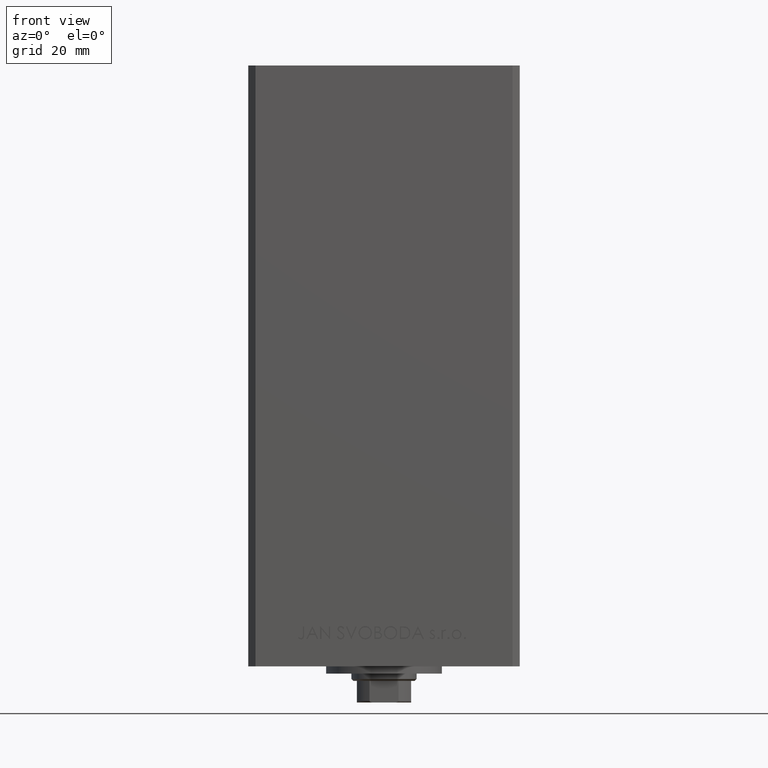
[diagram: clean part render]
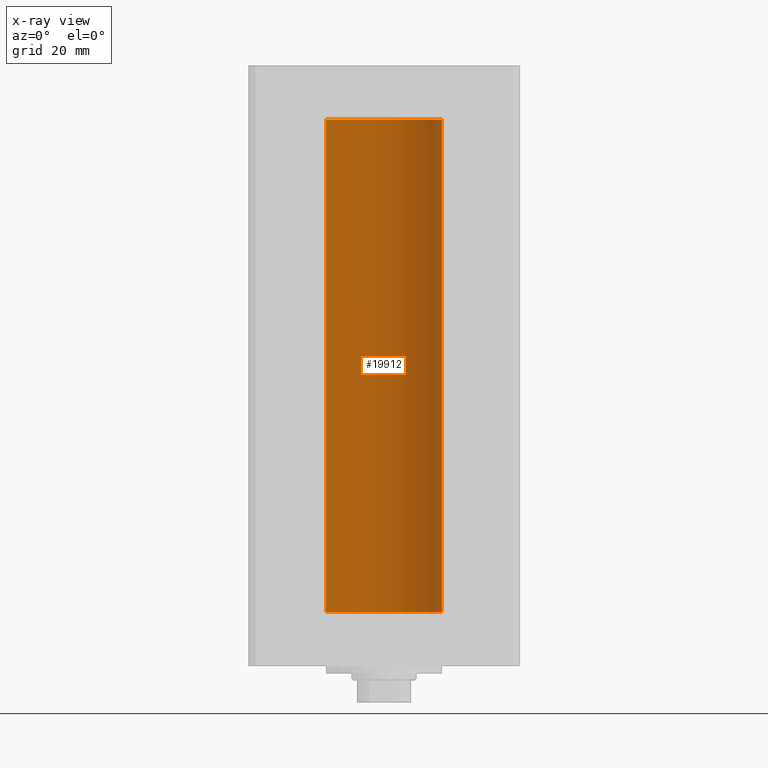
[diagram: x-ray — body ghosted, one internal face saturated and labeled with its STEP entity id]
A machine part, front view, then the same camera in x-ray: the body is ghosted and one INTERNAL B-rep face — a face not visible from any outside direction — is saturated and labeled: STEP entity #19912.
In plain terms, the highlighted cylindrical surface (partial cylindrical patch) has radius 16 mm, axis along (-0, -0, -1).
Its self-contained STEP definition (entity closure, byte-faithful):
#267 = CARTESIAN_POINT ( 'NONE',  ( 16.00000000000000000, 1.959434878635765131E-15, 136.0000000000000000 ) ) ;
#2742 = AXIS2_PLACEMENT_3D ( 'NONE', #22495, #33872, #37596 ) ;
#3081 = VECTOR ( 'NONE', #11420, 1000.000000000000000 ) ;
#3520 = LINE ( 'NONE', #18599, #3081 ) ;
#6728 = AXIS2_PLACEMENT_3D ( 'NONE', #22314, #32777, #26273 ) ;
#7261 = ORIENTED_EDGE ( 'NONE', *, *, #34221, .T. ) ;
#11420 = DIRECTION ( 'NONE',  ( -0.000000000000000000, -0.000000000000000000, -1.000000000000000000 ) ) ;
#13724 = VERTEX_POINT ( 'NONE', #267 ) ;
#15426 = ORIENTED_EDGE ( 'NONE', *, *, #20597, .T. ) ;
#17053 = CARTESIAN_POINT ( 'NONE',  ( 0.000000000000000000, 0.000000000000000000, 0.000000000000000000 ) ) ;
#18121 = CARTESIAN_POINT ( 'NONE',  ( 16.00000000000000000, 1.959434878635765131E-15, 136.0000000000000000 ) ) ;
#18599 = CARTESIAN_POINT ( 'NONE',  ( -16.00000000000000000, 0.000000000000000000, 136.0000000000000000 ) ) ;
#19912 = ADVANCED_FACE ( 'NONE', ( #44282 ), #43313, .F. ) ;
#20597 = EDGE_CURVE ( 'NONE', #13724, #40045, #47035, .T. ) ;
#20833 = EDGE_CURVE ( 'NONE', #31591, #23001, #24918, .T. ) ;
#20966 = AXIS2_PLACEMENT_3D ( 'NONE', #17053, #24000, #28184 ) ;
#22080 = LINE ( 'NONE', #18121, #28230 ) ;
#22314 = CARTESIAN_POINT ( 'NONE',  ( 0.000000000000000000, 0.000000000000000000, 136.0000000000000000 ) ) ;
#22495 = CARTESIAN_POINT ( 'NONE',  ( 0.000000000000000000, 0.000000000000000000, 136.0000000000000000 ) ) ;
#23001 = VERTEX_POINT ( 'NONE', #41961 ) ;
#24000 = DIRECTION ( 'NONE',  ( -0.000000000000000000, 0.000000000000000000, 1.000000000000000000 ) ) ;
#24918 = CIRCLE ( 'NONE', #20966, 16.00000000000000000 ) ;
#26273 = DIRECTION ( 'NONE',  ( 1.000000000000000000, 0.000000000000000000, 0.000000000000000000 ) ) ;
#28184 = DIRECTION ( 'NONE',  ( 1.000000000000000000, 0.000000000000000000, 0.000000000000000000 ) ) ;
#28230 = VECTOR ( 'NONE', #48317, 1000.000000000000000 ) ;
#29062 = EDGE_CURVE ( 'NONE', #13724, #31591, #22080, .T. ) ;
#30026 = CARTESIAN_POINT ( 'NONE',  ( -16.00000000000000000, 0.000000000000000000, 136.0000000000000000 ) ) ;
#31591 = VERTEX_POINT ( 'NONE', #41924 ) ;
#32777 = DIRECTION ( 'NONE',  ( -0.000000000000000000, 0.000000000000000000, 1.000000000000000000 ) ) ;
#33872 = DIRECTION ( 'NONE',  ( -0.000000000000000000, -0.000000000000000000, -1.000000000000000000 ) ) ;
#34221 = EDGE_CURVE ( 'NONE', #40045, #23001, #3520, .T. ) ;
#35662 = ORIENTED_EDGE ( 'NONE', *, *, #20833, .F. ) ;
#37596 = DIRECTION ( 'NONE',  ( -1.000000000000000000, 0.000000000000000000, 0.000000000000000000 ) ) ;
#39615 = EDGE_LOOP ( 'NONE', ( #46419, #15426, #7261, #35662 ) ) ;
#40045 = VERTEX_POINT ( 'NONE', #30026 ) ;
#41924 = CARTESIAN_POINT ( 'NONE',  ( 16.00000000000000000, 1.959434878635765131E-15, 0.000000000000000000 ) ) ;
#41961 = CARTESIAN_POINT ( 'NONE',  ( -16.00000000000000000, 0.000000000000000000, 0.000000000000000000 ) ) ;
#43313 = CYLINDRICAL_SURFACE ( 'NONE', #2742, 16.00000000000000000 ) ;
#44282 = FACE_OUTER_BOUND ( 'NONE', #39615, .T. ) ;
#46419 = ORIENTED_EDGE ( 'NONE', *, *, #29062, .F. ) ;
#47035 = CIRCLE ( 'NONE', #6728, 16.00000000000000000 ) ;
#48317 = DIRECTION ( 'NONE',  ( -0.000000000000000000, -0.000000000000000000, -1.000000000000000000 ) ) ;